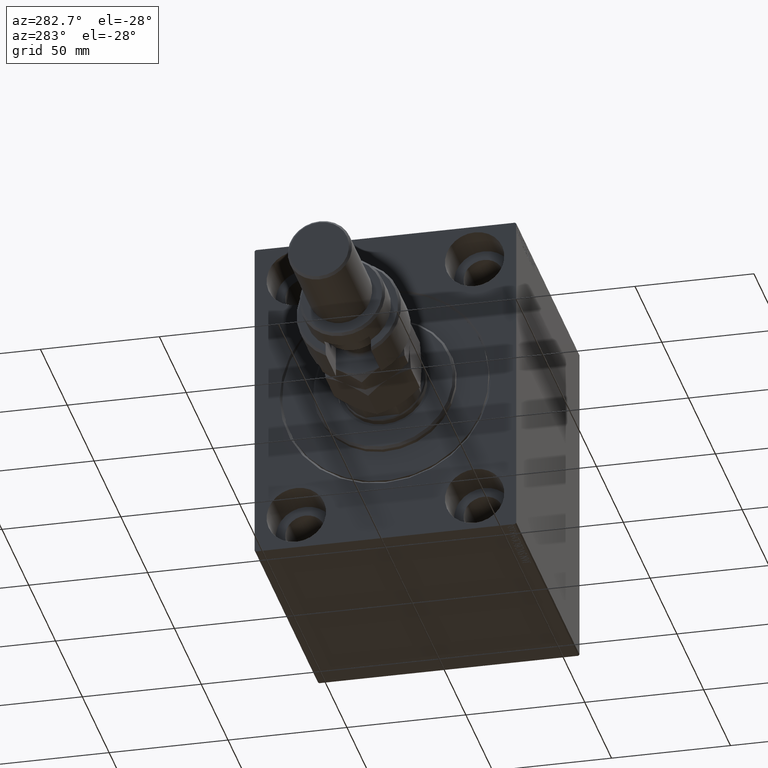
[diagram: clean part render]
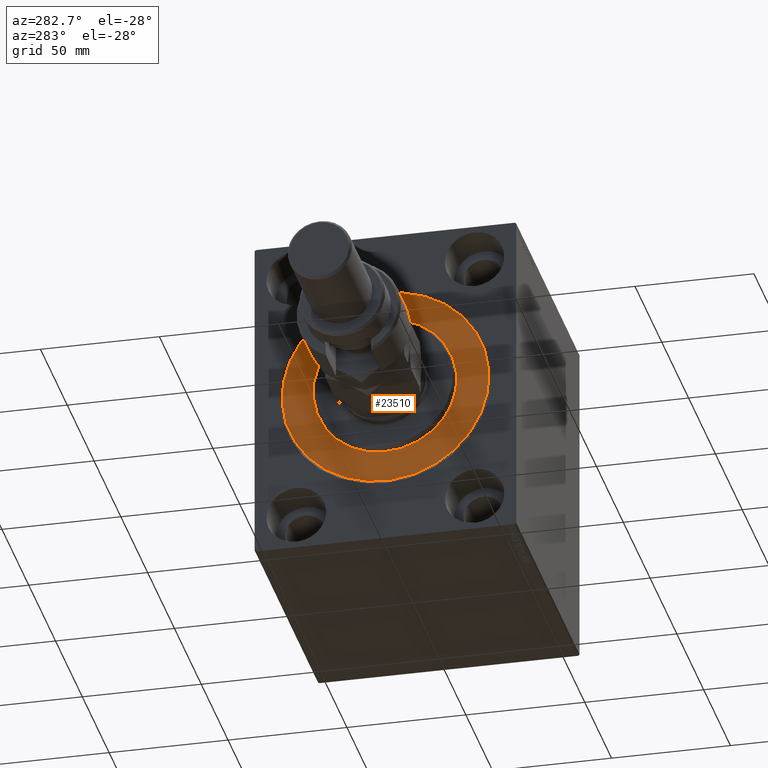
[diagram: same view with one face highlighted and labeled with its STEP entity id]
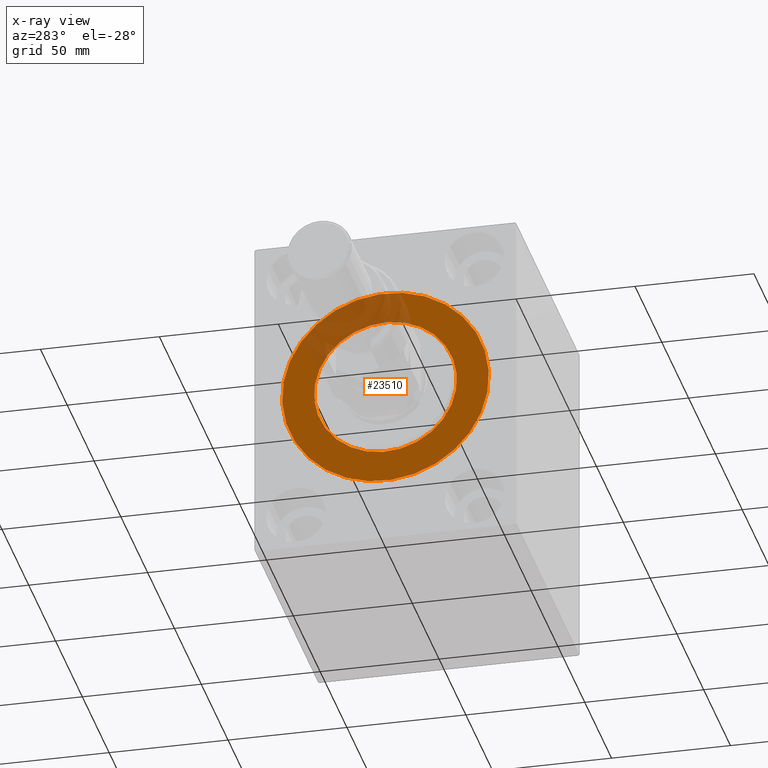
[diagram: x-ray of the same camera — body ghosted, the highlighted face saturated]
A machine part, auxiliary view. The second image highlights one B-rep face of the part: STEP entity #23510.
The next image is the same camera in x-ray: the body ghosted, the highlighted face saturated — about 20% of this face is hidden behind the body in this view.
In plain terms, the highlighted planar face has unit normal (1, 0, -0).
Its self-contained STEP definition (entity closure, byte-faithful):
#41 = DIRECTION ( 'NONE',  ( 0.000000000000000000, 0.000000000000000000, 1.000000000000000000 ) ) ;
#42 = ORIENTED_EDGE ( 'NONE', *, *, #31914, .F. ) ;
#3583 = CARTESIAN_POINT ( 'NONE',  ( 0.000000000000000000, 0.000000000000000000, 0.000000000000000000 ) ) ;
#4355 = AXIS2_PLACEMENT_3D ( 'NONE', #3583, #17959, #41 ) ;
#5199 = CARTESIAN_POINT ( 'NONE',  ( 0.000000000000000000, 5.327213576290986044E-15, 43.50000000000000000 ) ) ;
#5837 = ORIENTED_EDGE ( 'NONE', *, *, #17673, .F. ) ;
#8205 = DIRECTION ( 'NONE',  ( -1.000000000000000000, 0.000000000000000000, 0.000000000000000000 ) ) ;
#9727 = EDGE_CURVE ( 'NONE', #19116, #32445, #33770, .T. ) ;
#11033 = DIRECTION ( 'NONE',  ( 0.000000000000000000, 0.000000000000000000, 1.000000000000000000 ) ) ;
#11740 = CIRCLE ( 'NONE', #13986, 30.00000000000000000 ) ;
#12680 = ORIENTED_EDGE ( 'NONE', *, *, #35630, .F. ) ;
#13190 = DIRECTION ( 'NONE',  ( -1.000000000000000000, 0.000000000000000000, 0.000000000000000000 ) ) ;
#13986 = AXIS2_PLACEMENT_3D ( 'NONE', #32095, #14161, #28541 ) ;
#14161 = DIRECTION ( 'NONE',  ( 1.000000000000000000, -0.000000000000000000, 0.000000000000000000 ) ) ;
#14278 = EDGE_LOOP ( 'NONE', ( #5837, #12680 ) ) ;
#14334 = CARTESIAN_POINT ( 'NONE',  ( 0.000000000000000000, 3.673940397442059178E-15, -30.00000000000000000 ) ) ;
#14388 = CIRCLE ( 'NONE', #27954, 30.00000000000000000 ) ;
#15163 = VERTEX_POINT ( 'NONE', #14334 ) ;
#17194 = FACE_OUTER_BOUND ( 'NONE', #44210, .T. ) ;
#17673 = EDGE_CURVE ( 'NONE', #23425, #15163, #11740, .T. ) ;
#17959 = DIRECTION ( 'NONE',  ( -1.000000000000000000, 0.000000000000000000, 0.000000000000000000 ) ) ;
#18840 = CIRCLE ( 'NONE', #21838, 43.50000000000000000 ) ;
#19116 = VERTEX_POINT ( 'NONE', #33395 ) ;
#19234 = DIRECTION ( 'NONE',  ( 1.000000000000000000, -0.000000000000000000, 0.000000000000000000 ) ) ;
#21838 = AXIS2_PLACEMENT_3D ( 'NONE', #43377, #8205, #11033 ) ;
#23425 = VERTEX_POINT ( 'NONE', #41084 ) ;
#23510 = ADVANCED_FACE ( 'NONE', ( #38461, #17194 ), #42706, .F. ) ;
#24047 = DIRECTION ( 'NONE',  ( 0.000000000000000000, 0.000000000000000000, 1.000000000000000000 ) ) ;
#27954 = AXIS2_PLACEMENT_3D ( 'NONE', #40037, #19234, #36489 ) ;
#28541 = DIRECTION ( 'NONE',  ( 0.000000000000000000, 0.000000000000000000, -1.000000000000000000 ) ) ;
#31830 = CARTESIAN_POINT ( 'NONE',  ( 0.000000000000000000, 0.000000000000000000, 0.000000000000000000 ) ) ;
#31914 = EDGE_CURVE ( 'NONE', #32445, #19116, #18840, .T. ) ;
#32095 = CARTESIAN_POINT ( 'NONE',  ( 0.000000000000000000, 0.000000000000000000, 0.000000000000000000 ) ) ;
#32445 = VERTEX_POINT ( 'NONE', #5199 ) ;
#33395 = CARTESIAN_POINT ( 'NONE',  ( 0.000000000000000000, 0.000000000000000000, -43.50000000000000000 ) ) ;
#33770 = CIRCLE ( 'NONE', #4355, 43.50000000000000000 ) ;
#35630 = EDGE_CURVE ( 'NONE', #15163, #23425, #14388, .T. ) ;
#36489 = DIRECTION ( 'NONE',  ( 0.000000000000000000, 0.000000000000000000, -1.000000000000000000 ) ) ;
#38461 = FACE_BOUND ( 'NONE', #14278, .T. ) ;
#39265 = ORIENTED_EDGE ( 'NONE', *, *, #9727, .F. ) ;
#40037 = CARTESIAN_POINT ( 'NONE',  ( 0.000000000000000000, 0.000000000000000000, 0.000000000000000000 ) ) ;
#41084 = CARTESIAN_POINT ( 'NONE',  ( 0.000000000000000000, 0.000000000000000000, 30.00000000000000000 ) ) ;
#42706 = PLANE ( 'NONE',  #44343 ) ;
#43377 = CARTESIAN_POINT ( 'NONE',  ( 0.000000000000000000, 0.000000000000000000, 0.000000000000000000 ) ) ;
#44210 = EDGE_LOOP ( 'NONE', ( #39265, #42 ) ) ;
#44343 = AXIS2_PLACEMENT_3D ( 'NONE', #31830, #13190, #24047 ) ;